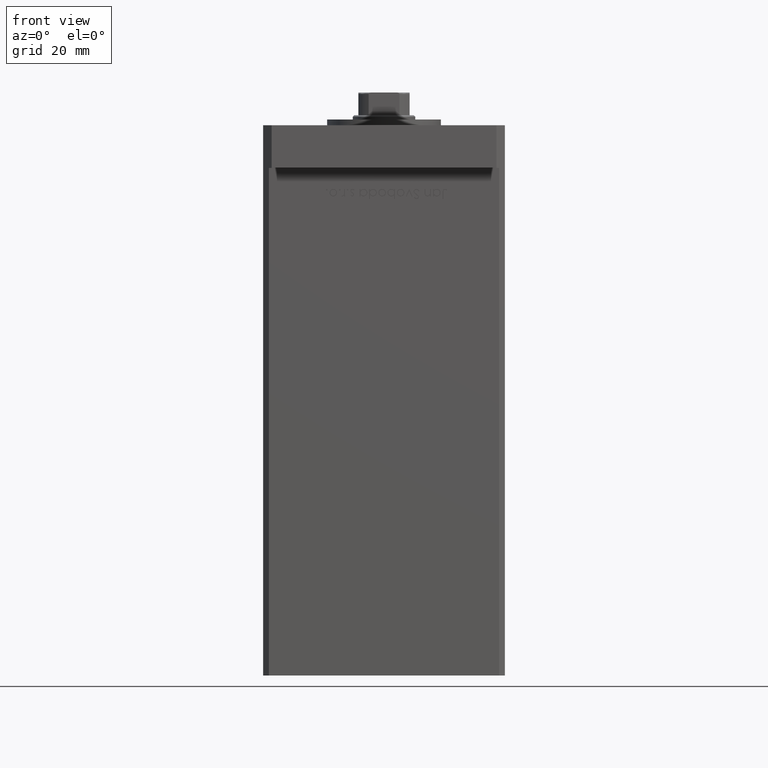
[diagram: clean part render]
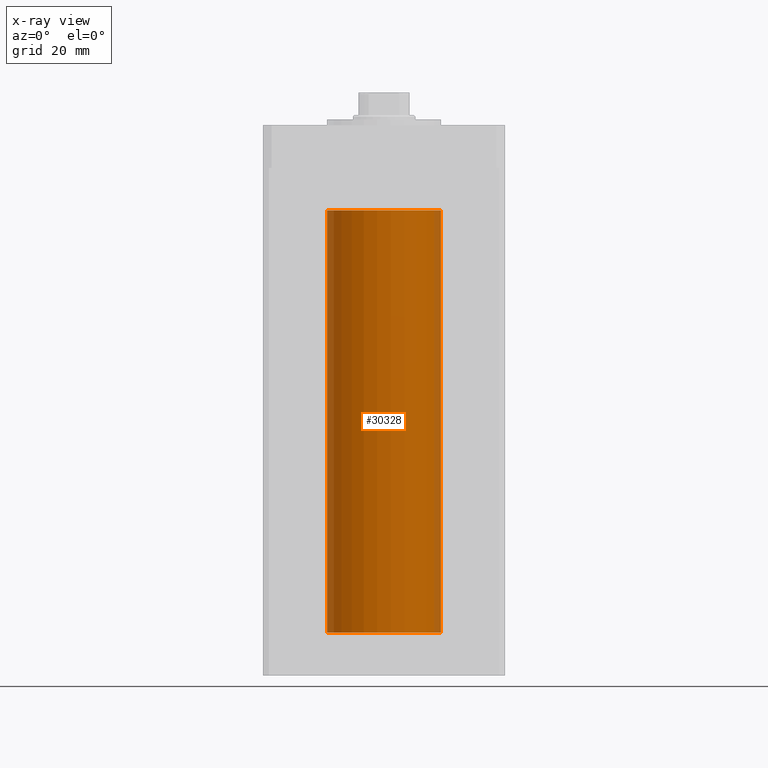
[diagram: x-ray — body ghosted, one internal face saturated and labeled with its STEP entity id]
A machine part, front view, then the same camera in x-ray: the body is ghosted and one INTERNAL B-rep face — a face not visible from any outside direction — is saturated and labeled: STEP entity #30328.
In plain terms, the highlighted cylindrical surface (partial cylindrical patch) has radius 20 mm, axis along (-0, -0, -1).
Its self-contained STEP definition (entity closure, byte-faithful):
#3935 = VERTEX_POINT ( 'NONE', #25198 ) ;
#4532 = EDGE_CURVE ( 'NONE', #41627, #19399, #24255, .T. ) ;
#5163 = EDGE_CURVE ( 'NONE', #41954, #41627, #32691, .T. ) ;
#6183 = CARTESIAN_POINT ( 'NONE',  ( -20.00000000000000000, 0.000000000000000000, 148.5000000000000000 ) ) ;
#7448 = DIRECTION ( 'NONE',  ( -1.000000000000000000, 0.000000000000000000, 0.000000000000000000 ) ) ;
#8529 = ORIENTED_EDGE ( 'NONE', *, *, #4532, .T. ) ;
#8619 = DIRECTION ( 'NONE',  ( -0.000000000000000000, 0.000000000000000000, 1.000000000000000000 ) ) ;
#9329 = ORIENTED_EDGE ( 'NONE', *, *, #27410, .F. ) ;
#10583 = CARTESIAN_POINT ( 'NONE',  ( 20.00000000000000000, 2.449293598294706513E-15, 148.5000000000000000 ) ) ;
#11387 = DIRECTION ( 'NONE',  ( -0.000000000000000000, -0.000000000000000000, -1.000000000000000000 ) ) ;
#14315 = AXIS2_PLACEMENT_3D ( 'NONE', #30066, #24659, #41167 ) ;
#14939 = AXIS2_PLACEMENT_3D ( 'NONE', #44570, #49730, #7448 ) ;
#18807 = VECTOR ( 'NONE', #32369, 1000.000000000000000 ) ;
#19399 = VERTEX_POINT ( 'NONE', #39422 ) ;
#24255 = LINE ( 'NONE', #41304, #18807 ) ;
#24659 = DIRECTION ( 'NONE',  ( -0.000000000000000000, 0.000000000000000000, 1.000000000000000000 ) ) ;
#25198 = CARTESIAN_POINT ( 'NONE',  ( -20.00000000000000000, 0.000000000000000000, 0.000000000000000000 ) ) ;
#27410 = EDGE_CURVE ( 'NONE', #41954, #3935, #48515, .T. ) ;
#28128 = ORIENTED_EDGE ( 'NONE', *, *, #5163, .T. ) ;
#29025 = CIRCLE ( 'NONE', #14315, 20.00000000000000000 ) ;
#30066 = CARTESIAN_POINT ( 'NONE',  ( 0.000000000000000000, 0.000000000000000000, 0.000000000000000000 ) ) ;
#30328 = ADVANCED_FACE ( 'NONE', ( #52732 ), #41579, .F. ) ;
#32369 = DIRECTION ( 'NONE',  ( -0.000000000000000000, -0.000000000000000000, -1.000000000000000000 ) ) ;
#32691 = CIRCLE ( 'NONE', #51743, 20.00000000000000000 ) ;
#35220 = EDGE_LOOP ( 'NONE', ( #28128, #8529, #42632, #9329 ) ) ;
#39422 = CARTESIAN_POINT ( 'NONE',  ( 20.00000000000000000, 2.449293598294706513E-15, 0.000000000000000000 ) ) ;
#40630 = CARTESIAN_POINT ( 'NONE',  ( -20.00000000000000000, 0.000000000000000000, 148.5000000000000000 ) ) ;
#41167 = DIRECTION ( 'NONE',  ( 1.000000000000000000, 0.000000000000000000, 0.000000000000000000 ) ) ;
#41304 = CARTESIAN_POINT ( 'NONE',  ( 20.00000000000000000, 2.449293598294706513E-15, 148.5000000000000000 ) ) ;
#41579 = CYLINDRICAL_SURFACE ( 'NONE', #14939, 20.00000000000000000 ) ;
#41627 = VERTEX_POINT ( 'NONE', #10583 ) ;
#41954 = VERTEX_POINT ( 'NONE', #6183 ) ;
#42632 = ORIENTED_EDGE ( 'NONE', *, *, #52121, .F. ) ;
#44570 = CARTESIAN_POINT ( 'NONE',  ( 0.000000000000000000, 0.000000000000000000, 148.5000000000000000 ) ) ;
#45728 = CARTESIAN_POINT ( 'NONE',  ( 0.000000000000000000, 0.000000000000000000, 148.5000000000000000 ) ) ;
#46103 = VECTOR ( 'NONE', #11387, 1000.000000000000000 ) ;
#48515 = LINE ( 'NONE', #40630, #46103 ) ;
#49730 = DIRECTION ( 'NONE',  ( -0.000000000000000000, -0.000000000000000000, -1.000000000000000000 ) ) ;
#50346 = DIRECTION ( 'NONE',  ( 1.000000000000000000, 0.000000000000000000, 0.000000000000000000 ) ) ;
#51743 = AXIS2_PLACEMENT_3D ( 'NONE', #45728, #8619, #50346 ) ;
#52121 = EDGE_CURVE ( 'NONE', #3935, #19399, #29025, .T. ) ;
#52732 = FACE_OUTER_BOUND ( 'NONE', #35220, .T. ) ;